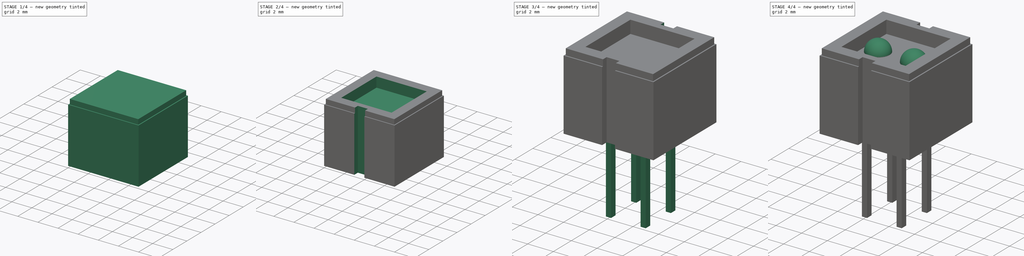
[diagram: build sequence overview — one tinted view per stage of 4, left to right]
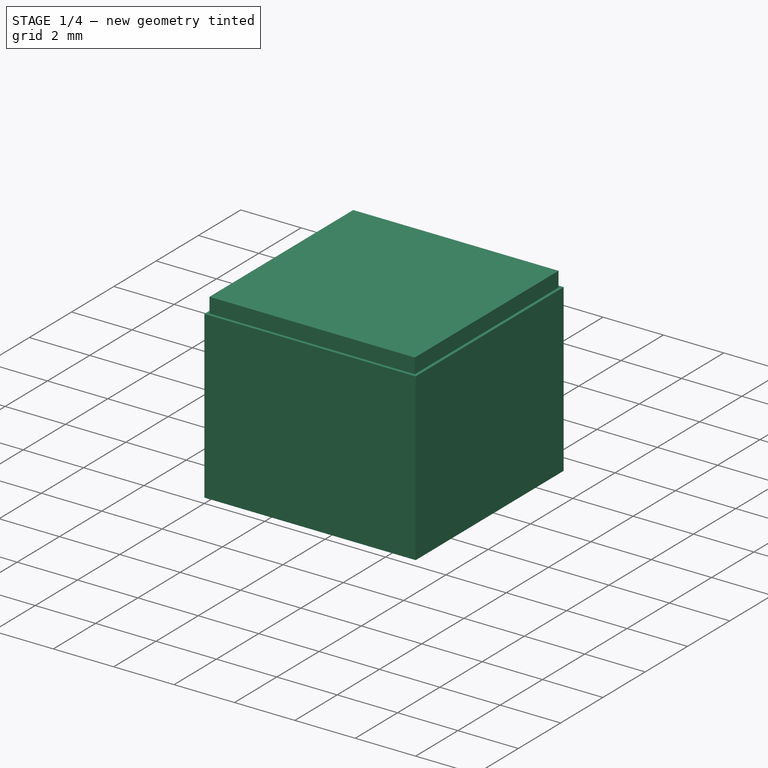
[diagram: stage 1 of 4 — iso view after this stage's code; geometry added in this stage tinted green]
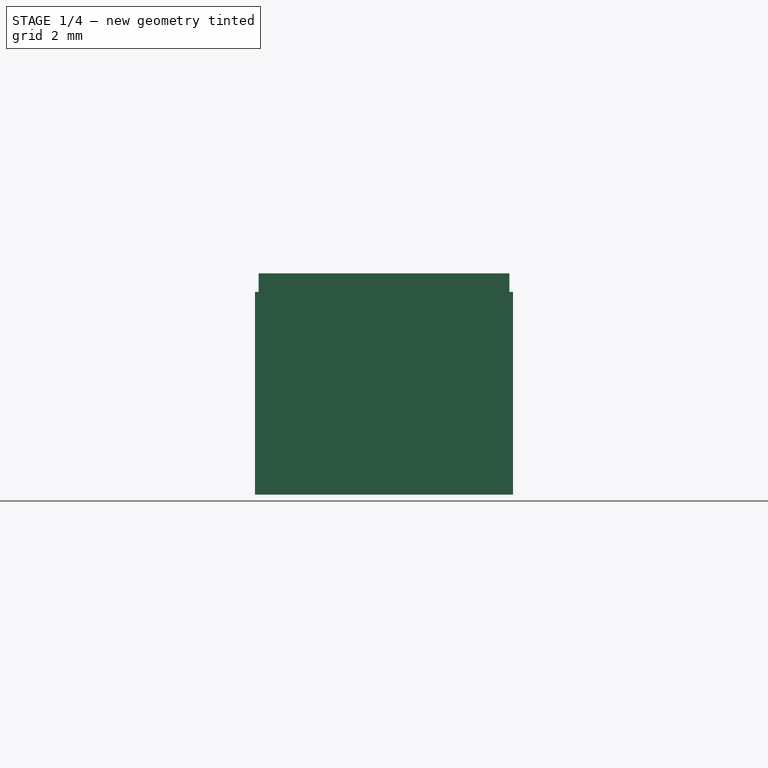
[diagram: stage 1 of 4 — front view after this stage's code; geometry added in this stage tinted green]
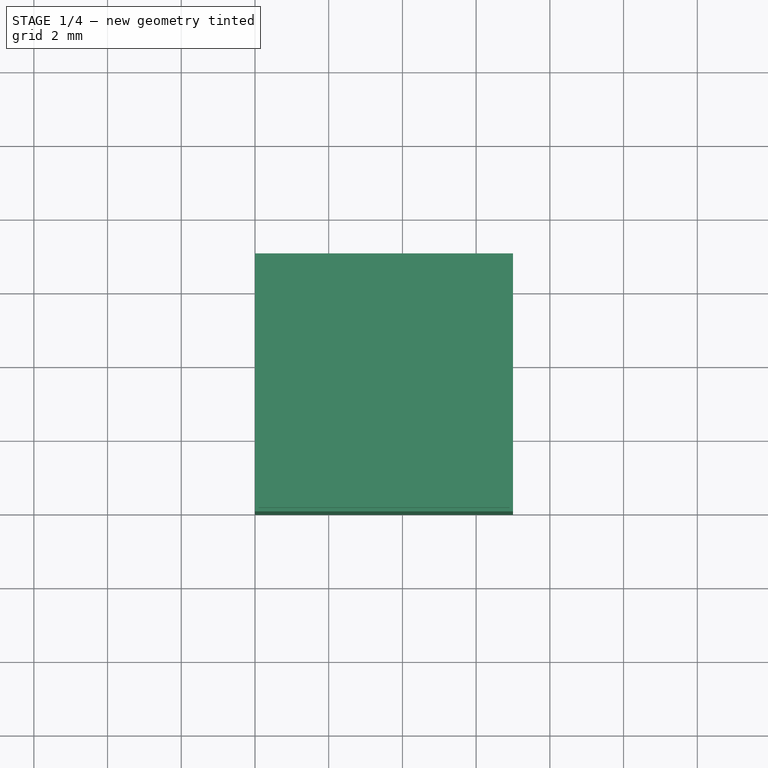
[diagram: stage 1 of 4 — top view after this stage's code; geometry added in this stage tinted green]
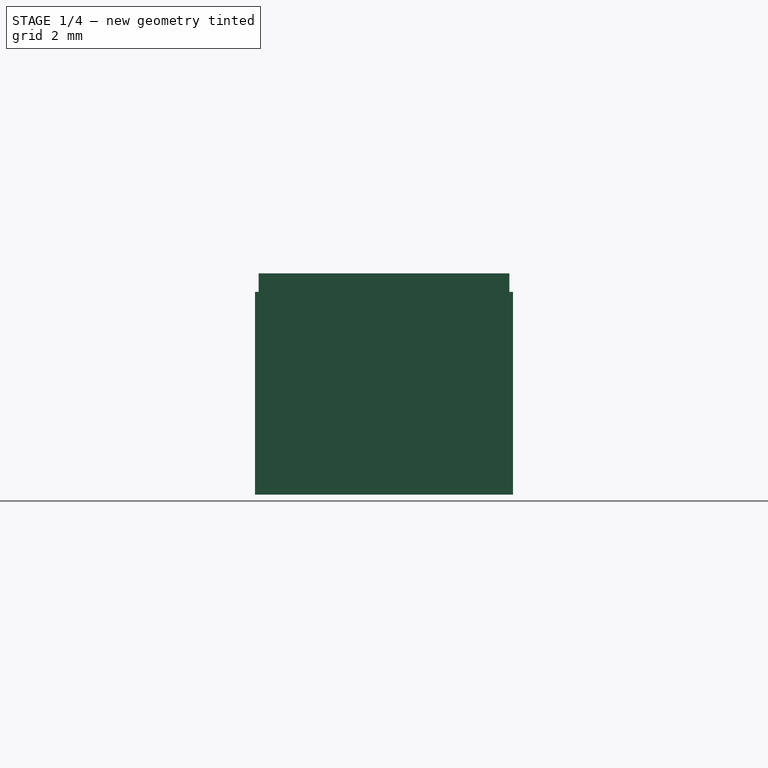
[diagram: stage 1 of 4 — right view after this stage's code; geometry added in this stage tinted green]
FCSTD DOCUMENT  (FreeCAD 0.14R3700 (Git))
Label: cny70
License: CC-BY 3.0
LicenseURL: http://creativecommons.org/licenses/by/3.0/
objects: Part::Box×3, Sketcher::SketchObject×3, Part::MultiFuse×2, PartDesign::Pocket×2, Part::Sphere×2, Part::Cut×1, PartDesign::Pad×1
note: 17 computed .brp shape members not serialized (recipe doc carries the construction recipe); baked Part::Feature solids carry a one-line shape summary decoded from their .brp

FEATURE [Part::Box] Box  label="Cubo"
  Height = 5.5
  Length = 7
  Width = 7
FEATURE [Part::Box] Box002  label="Cubo002"
  Height = 0.5
  Length = 6.8
  Placement = pos=(0.1,0.1,5.5) rot=(0,0,1;0rad)
  Width = 6.8
FEATURE [Part::MultiFuse] Fusion
  Shapes = -> [Box,Box002]
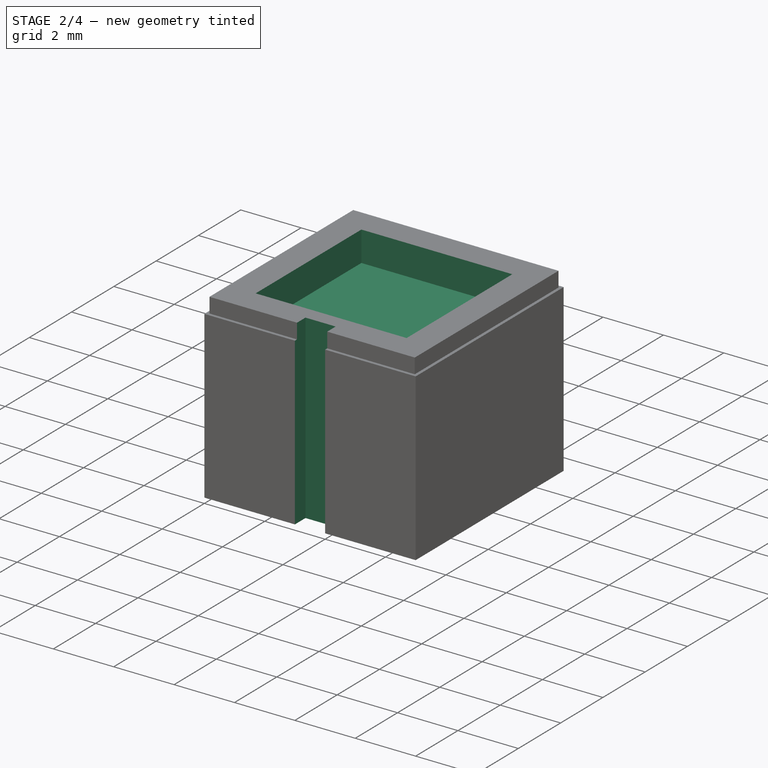
[diagram: stage 2 of 4 — iso view after this stage's code; geometry added in this stage tinted green]
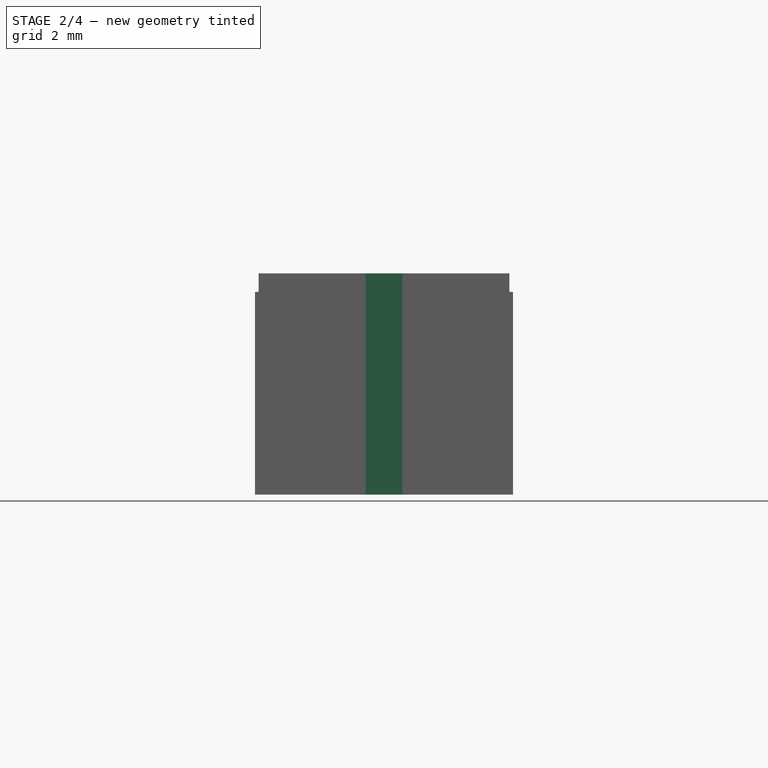
[diagram: stage 2 of 4 — front view after this stage's code; geometry added in this stage tinted green]
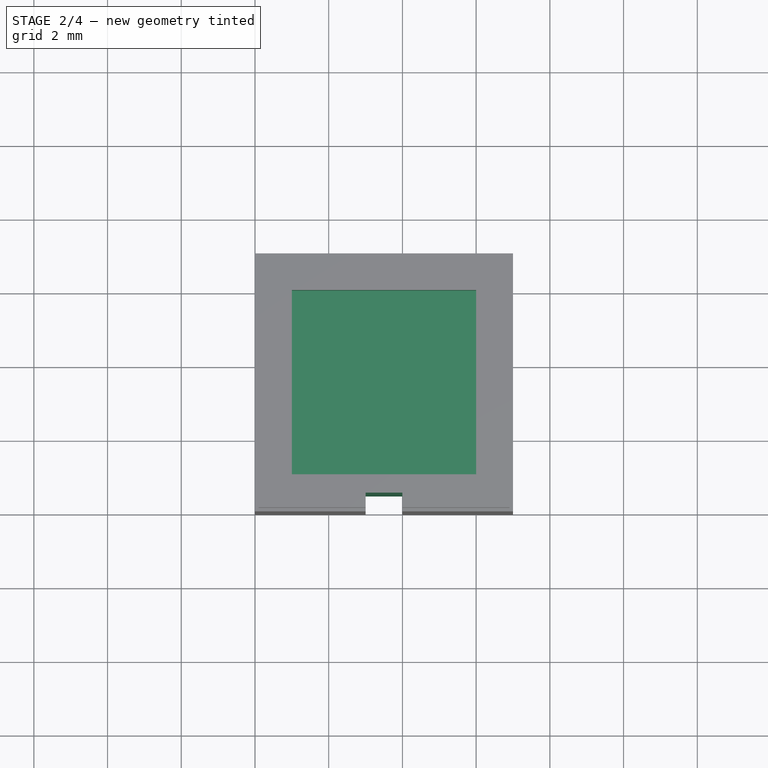
[diagram: stage 2 of 4 — top view after this stage's code; geometry added in this stage tinted green]
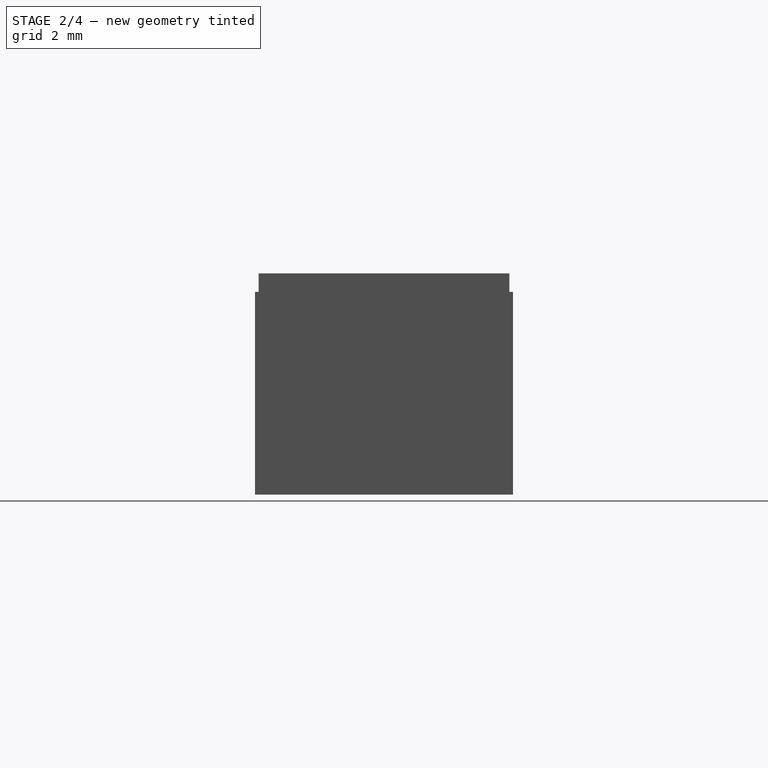
[diagram: stage 2 of 4 — right view after this stage's code; geometry added in this stage tinted green]
FEATURE [Part::Box] Box001  label="Cubo001"
  Height = 1
  Length = 5
  Placement = pos=(1,1,5) rot=(0,0,1;0rad)
  Width = 5
FEATURE [Part::Cut] Cut
  Base = -> Fusion
  Tool = -> Box001
FEATURE [Sketcher::SketchObject] Sketch
  ExternalGeometry = -> [Cut]
  Placement = pos=(0,0,0) rot=(1,0,0;1.5708rad)
  Support = -> Cut [Face2]
  sketch-geometry (4):
    g0: LineSegment StartX=4 StartY=6 StartZ=0 EndX=3 EndY=6 EndZ=0
    g1: LineSegment StartX=3 StartY=6 StartZ=0 EndX=3 EndY=0 EndZ=0
    g2: LineSegment StartX=3 StartY=0 StartZ=0 EndX=4 EndY=0 EndZ=0
    g3: LineSegment StartX=4 StartY=0 StartZ=0 EndX=4 EndY=6 EndZ=0
  constraints (12):
    c: Coincident(g0,g1)
    c: Coincident(g1,g2)
    c: Coincident(g2,g3)
    c: Coincident(g3,g0)
    c: Horizontal(g0)
    c: Horizontal(g2)
    c: Vertical(g1)
    c: Vertical(g3)
    c: DistanceX(g0) = -1
    c: DistanceX(g0,g-3) = -3
    c: DistanceY(g-1,g1) = 0
    c: DistanceY(g3) = 6
FEATURE [PartDesign::Pocket] Pocket
  Length = 0.5
  Sketch = -> Sketch
  Type = 0
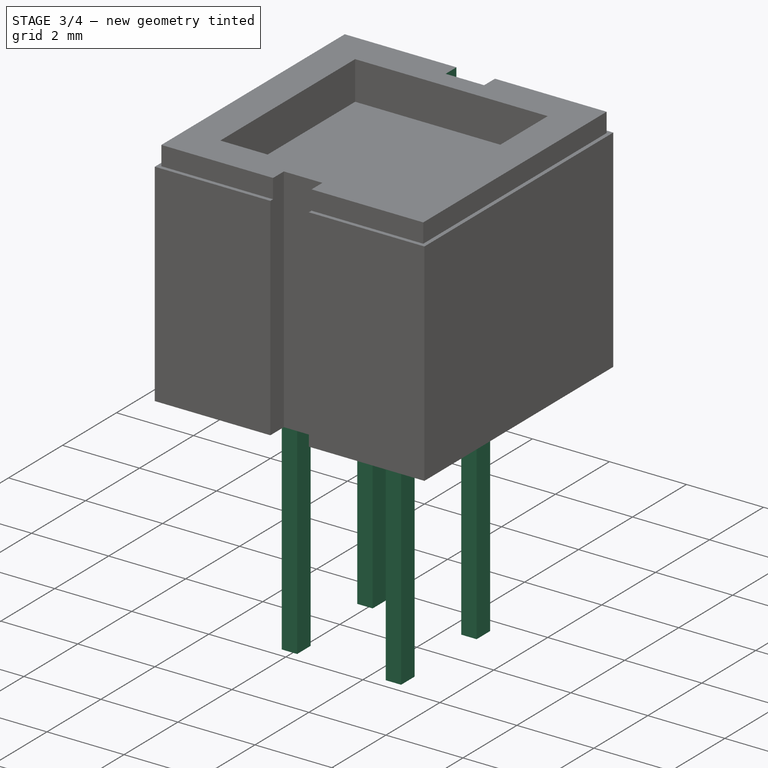
[diagram: stage 3 of 4 — iso view after this stage's code; geometry added in this stage tinted green]
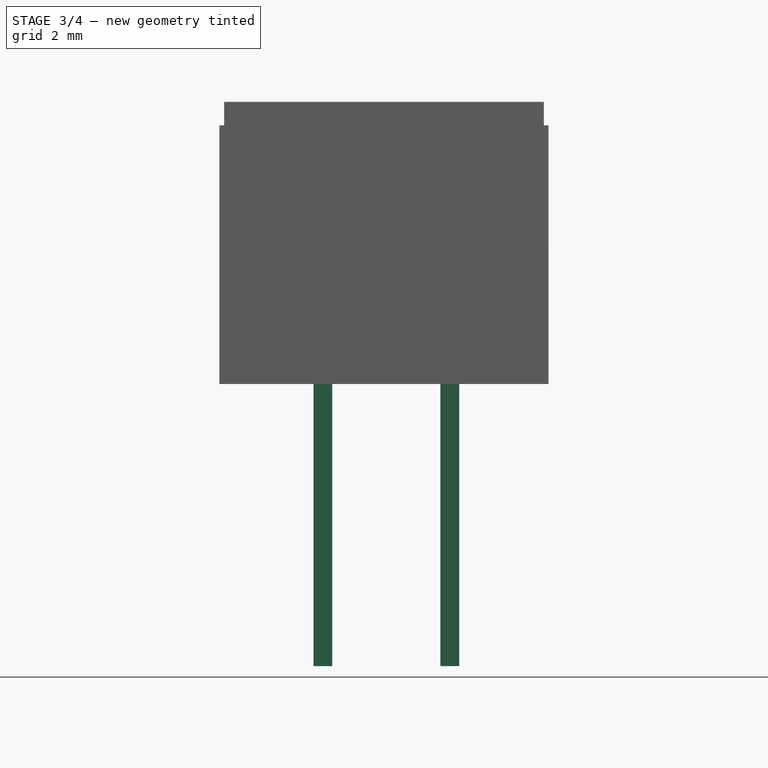
[diagram: stage 3 of 4 — front view after this stage's code; geometry added in this stage tinted green]
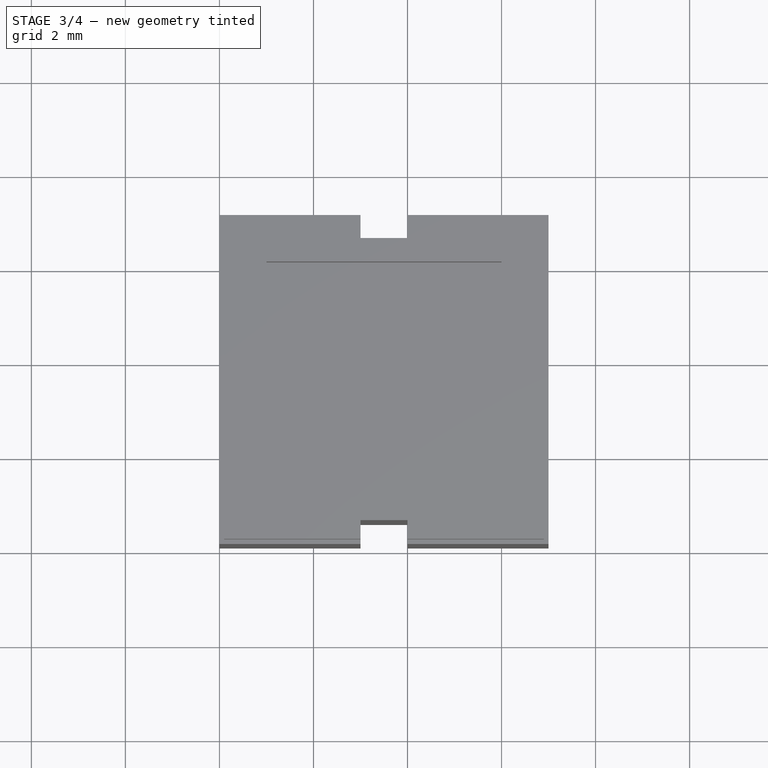
[diagram: stage 3 of 4 — top view after this stage's code; geometry added in this stage tinted green]
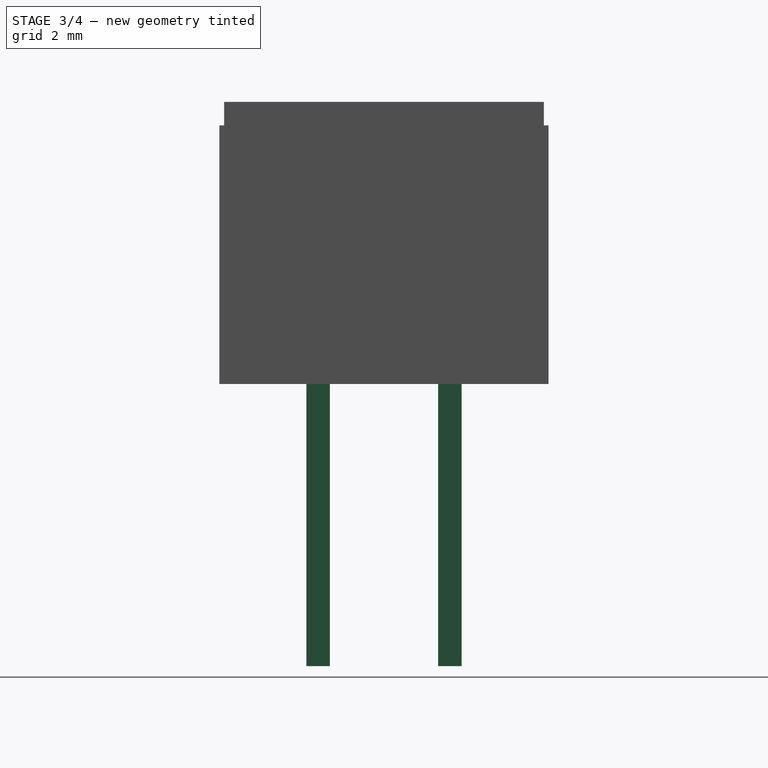
[diagram: stage 3 of 4 — right view after this stage's code; geometry added in this stage tinted green]
FEATURE [Sketcher::SketchObject] Sketch001
  Placement = pos=(0,7,0) rot=(0,0.707107,0.707107;3.14159rad)
  Support = -> Pocket [Face4]
  sketch-geometry (4):
    g0: LineSegment StartX=-3 StartY=6 StartZ=0 EndX=-4 EndY=6 EndZ=0
    g1: LineSegment StartX=-4 StartY=6 StartZ=0 EndX=-4 EndY=0 EndZ=0
    g2: LineSegment StartX=-4 StartY=0 StartZ=0 EndX=-3 EndY=0 EndZ=0
    g3: LineSegment StartX=-3 StartY=0 StartZ=0 EndX=-3 EndY=6 EndZ=0
  constraints (10):
    c: Coincident(g0,g1)
    c: Coincident(g1,g2)
    c: Coincident(g2,g3)
    c: Coincident(g3,g0)
    c: Horizontal(g0)
    c: Horizontal(g2)
    c: Vertical(g1)
    c: Vertical(g3)
    c: DistanceX(g0) = -1
    c: DistanceY(g3) = 6
FEATURE [PartDesign::Pocket] Pocket001
  Length = 0.5
  Sketch = -> Sketch001
  Type = 0
FEATURE [Sketcher::SketchObject] Sketch002
  ExternalGeometry = -> [Pocket001]
  Placement = pos=(0,0,0) rot=(1,0,0;3.14159rad)
  Support = -> Pocket001 [Face5]
  sketch-geometry (16):
    g0: LineSegment StartX=2.4 StartY=-1.85 StartZ=0 EndX=2 EndY=-1.85 EndZ=0
    g1: LineSegment StartX=2 StartY=-1.85 StartZ=0 EndX=2 EndY=-2.35 EndZ=0
    g2: LineSegment StartX=2 StartY=-2.35 StartZ=0 EndX=2.4 EndY=-2.35 EndZ=0
    g3: LineSegment StartX=2.4 StartY=-2.35 StartZ=0 EndX=2.4 EndY=-1.85 EndZ=0
    g4: LineSegment StartX=4.7 StartY=-1.85 StartZ=0 EndX=5.1 EndY=-1.85 EndZ=0
    g5: LineSegment StartX=5.1 StartY=-1.85 StartZ=0 EndX=5.1 EndY=-2.35 EndZ=0
    g6: LineSegment StartX=5.1 StartY=-2.35 StartZ=0 EndX=4.7 EndY=-2.35 EndZ=0
    g7: LineSegment StartX=4.7 StartY=-2.35 StartZ=0 EndX=4.7 EndY=-1.85 EndZ=0
    g8: LineSegment StartX=4.7 StartY=-4.65 StartZ=0 EndX=5.1 EndY=-4.65 EndZ=0
    g9: LineSegment StartX=5.1 StartY=-4.65 StartZ=0 EndX=5.1 EndY=-5.15 EndZ=0
    g10: LineSegment StartX=5.1 StartY=-5.15 StartZ=0 EndX=4.7 EndY=-5.15 EndZ=0
    g11: LineSegment StartX=4.7 StartY=-5.15 StartZ=0 EndX=4.7 EndY=-4.65 EndZ=0
    g12: LineSegment StartX=2 StartY=-4.65 StartZ=0 EndX=2.4 EndY=-4.65 EndZ=0
    g13: LineSegment StartX=2.4 StartY=-4.65 StartZ=0 EndX=2.4 EndY=-5.15 EndZ=0
    g14: LineSegment StartX=2.4 StartY=-5.15 StartZ=0 EndX=2 EndY=-5.15 EndZ=0
    g15: LineSegment StartX=2 StartY=-5.15 StartZ=0 EndX=2 EndY=-4.65 EndZ=0
  constraints (54):
    c: Coincident(g0,g1)
    c: Coincident(g1,g2)
    c: Coincident(g2,g3)
    c: Coincident(g3,g0)
    c: Horizontal(g0)
    c: Horizontal(g2)
    c: Vertical(g1)
    c: Vertical(g3)
    c: DistanceX(g0) = -0.4
    c: DistanceY(g3) = 0.5
    c: Coincident(g4,g5)
    c: Coincident(g5,g6)
    c: Coincident(g6,g7)
    c: Coincident(g7,g4)
    c: Horizontal(g4)
    c: Horizontal(g6)
    c: Vertical(g5)
    c: Vertical(g7)
    c: Coincident(g8,g9)
    c: Coincident(g9,g10)
    c: Coincident(g10,g11)
    c: Coincident(g11,g8)
    c: Horizontal(g8)
    c: Horizontal(g10)
    c: Vertical(g9)
    c: Vertical(g11)
    c: Coincident(g12,g13)
    c: Coincident(g13,g14)
    c: Coincident(g14,g15)
    c: Coincident(g15,g12)
    c: Horizontal(g12)
    c: Horizontal(g14)
    c: Vertical(g13)
    c: Vertical(g15)
    c: Equal(g2,g6)
    c: Equal(g6,g4)
    c: Equal(g4,g8)
    c: Equal(g8,g10)
    c: Equal(g10,g14)
    c: Equal(g14,g12)
    c: Equal(g3,g7)
    c: Equal(g7,g5)
    c: Equal(g5,g11)
    c: Equal(g11,g9)
    c: Equal(g9,g15)
    c: Equal(g15,g13)
    c: DistanceY(g2,g12) = -2.3
    c: DistanceX(g2,g6) = 2.3
    c: DistanceY(g6,g8) = -2.3
    c: DistanceX(g12,g8) = 2.3
    c: DistanceX(g9,g-3) = 1.9
    c: DistanceY(g9,g-3) = -1.85
    c: DistanceY(g13,g-3) = -1.85
    c: DistanceX(g4,g-3) = 1.9
FEATURE [PartDesign::Pad] Pad
  Length = 6
  Length2 = 100
  Sketch = -> Sketch002
  Type = 0
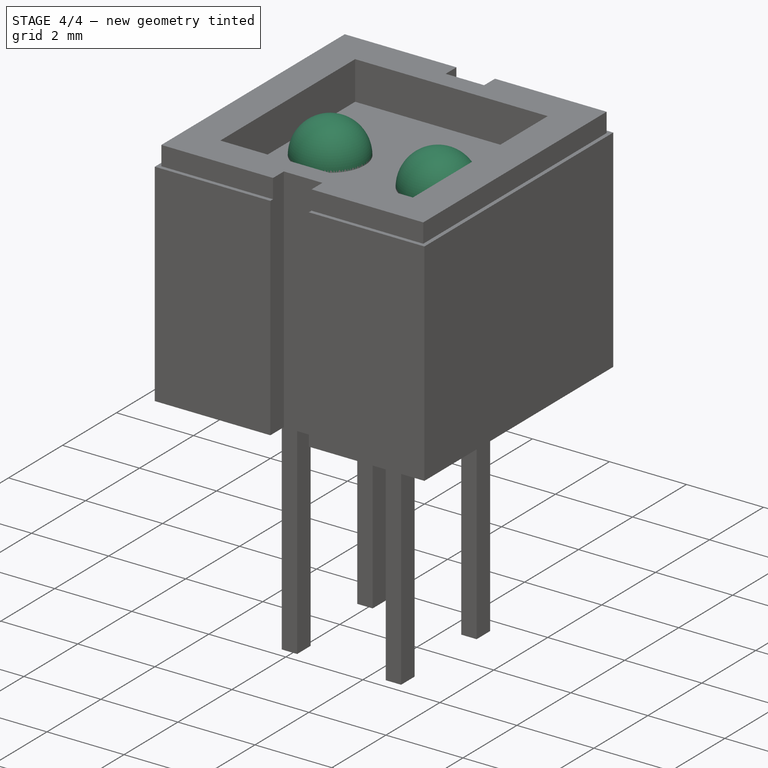
[diagram: stage 4 of 4 — iso view after this stage's code; geometry added in this stage tinted green]
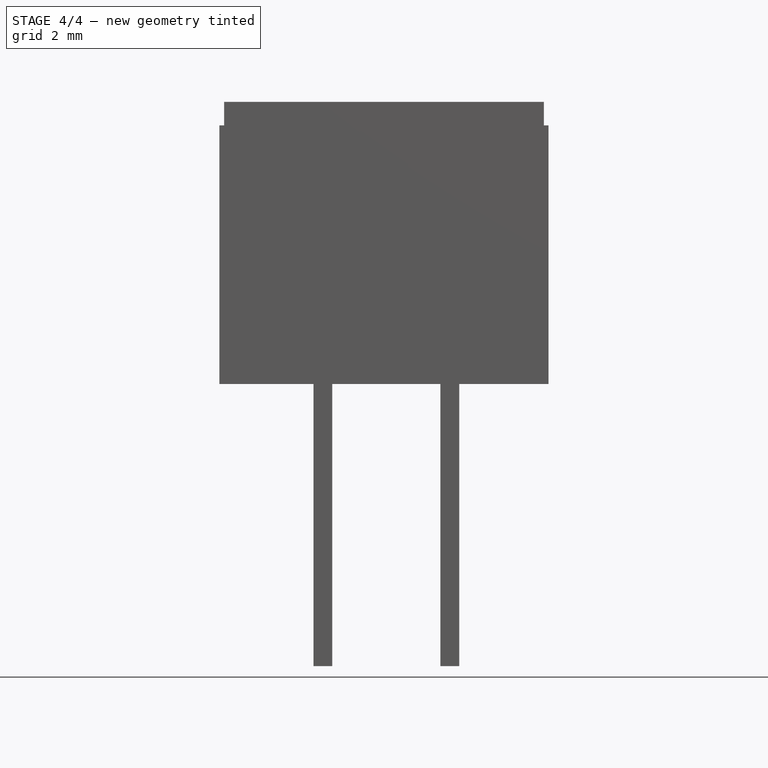
[diagram: stage 4 of 4 — front view after this stage's code; geometry added in this stage tinted green]
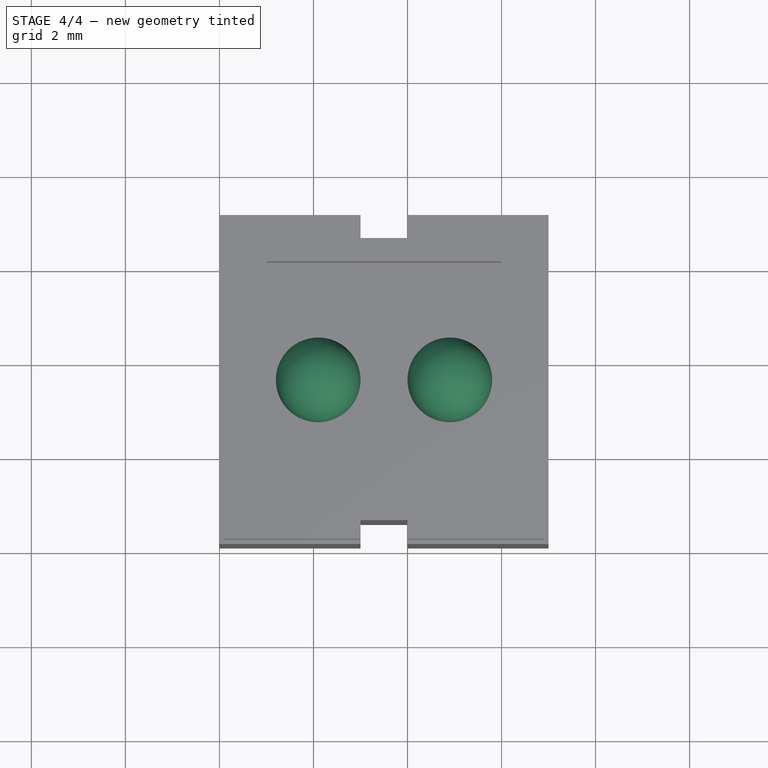
[diagram: stage 4 of 4 — top view after this stage's code; geometry added in this stage tinted green]
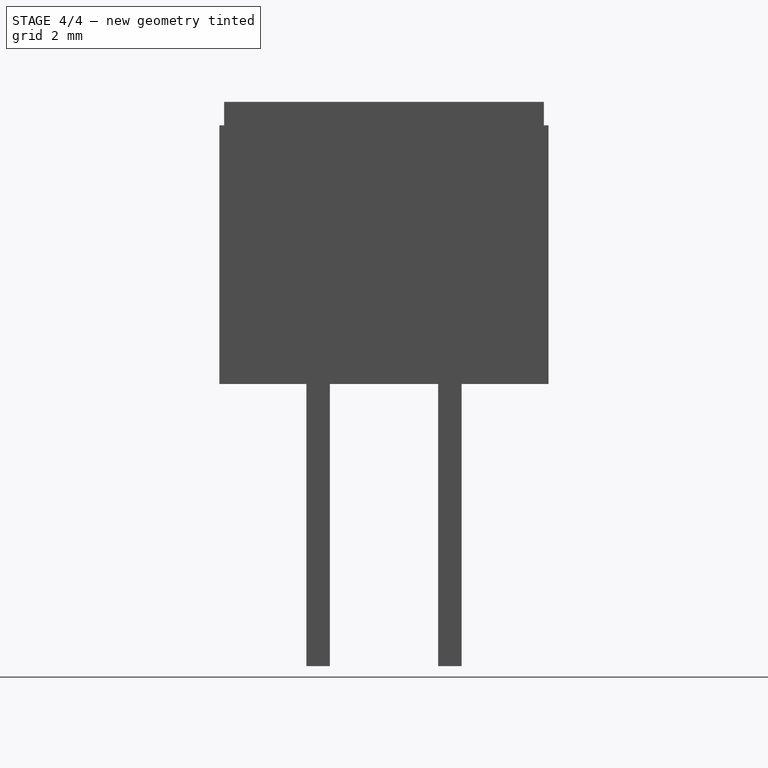
[diagram: stage 4 of 4 — right view after this stage's code; geometry added in this stage tinted green]
FEATURE [Part::Sphere] Sphere  label="Esféra"
  Angle1 = -90
  Angle2 = 90
  Angle3 = 360
  Placement = pos=(2.1,3.5,5) rot=(0,0,1;0rad)
  Radius = 0.9
FEATURE [Part::Sphere] Sphere001  label="Esféra001"
  Angle1 = -90
  Angle2 = 90
  Angle3 = 360
  Placement = pos=(4.9,3.5,5) rot=(0,0,1;0rad)
  Radius = 0.9
FEATURE [Part::MultiFuse] Fusion001  label="cny70"
  Shapes = -> [Pad,Sphere001,Sphere]
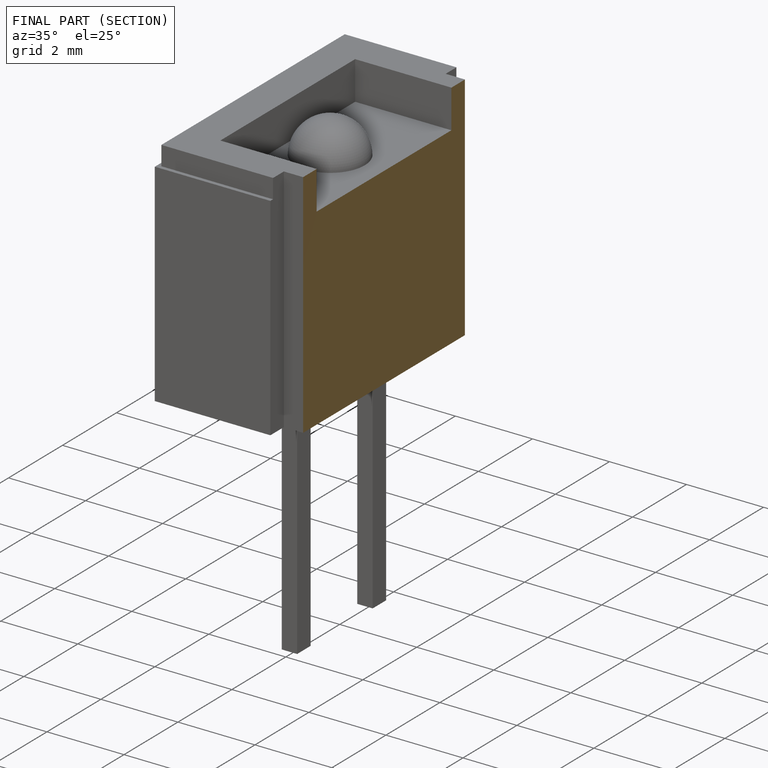
[diagram: finished part — half-section view (interior)]
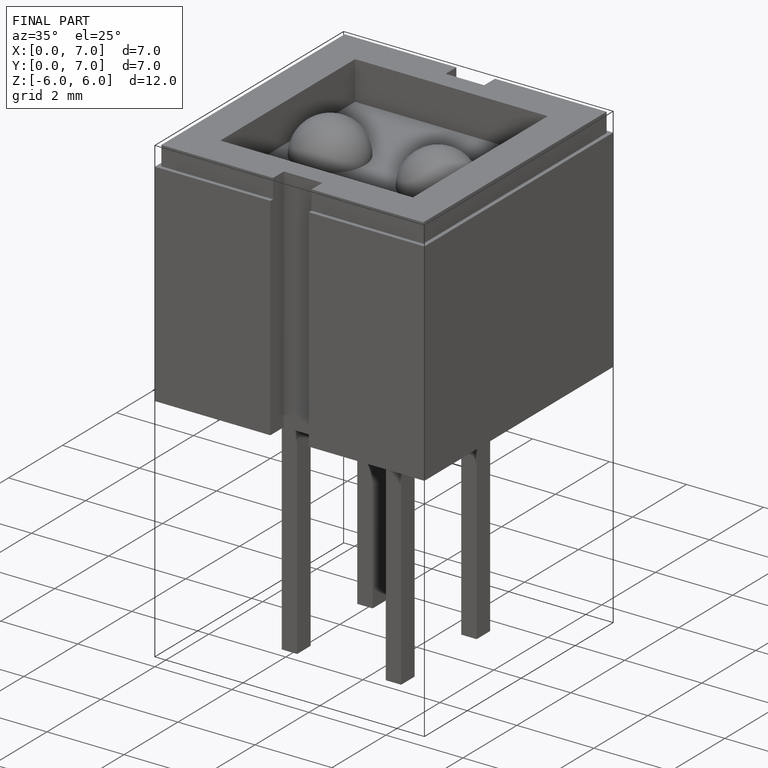
[diagram: finished part — iso view with bounding-box wireframe]
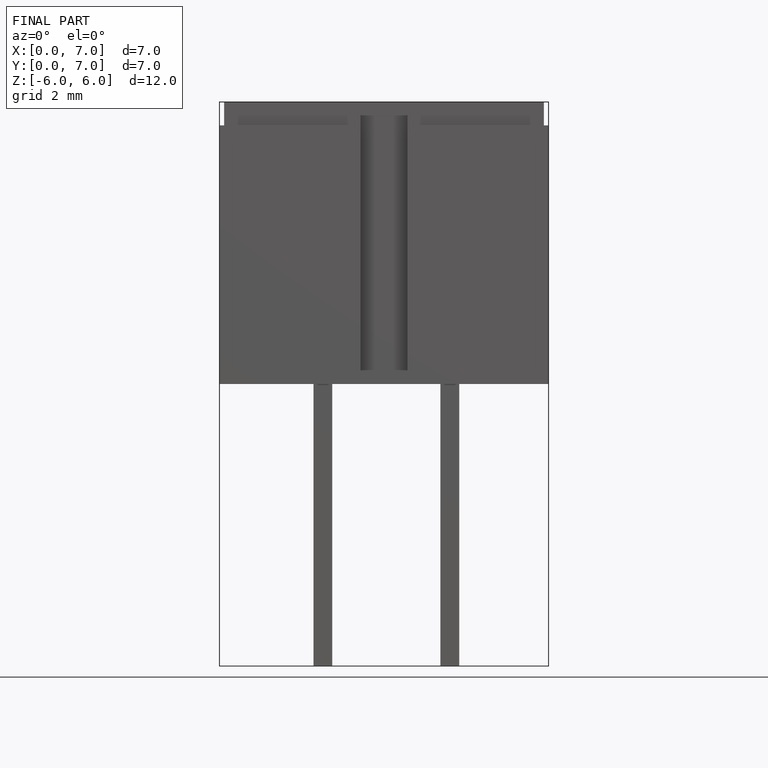
[diagram: finished part — front view with bounding-box wireframe]
